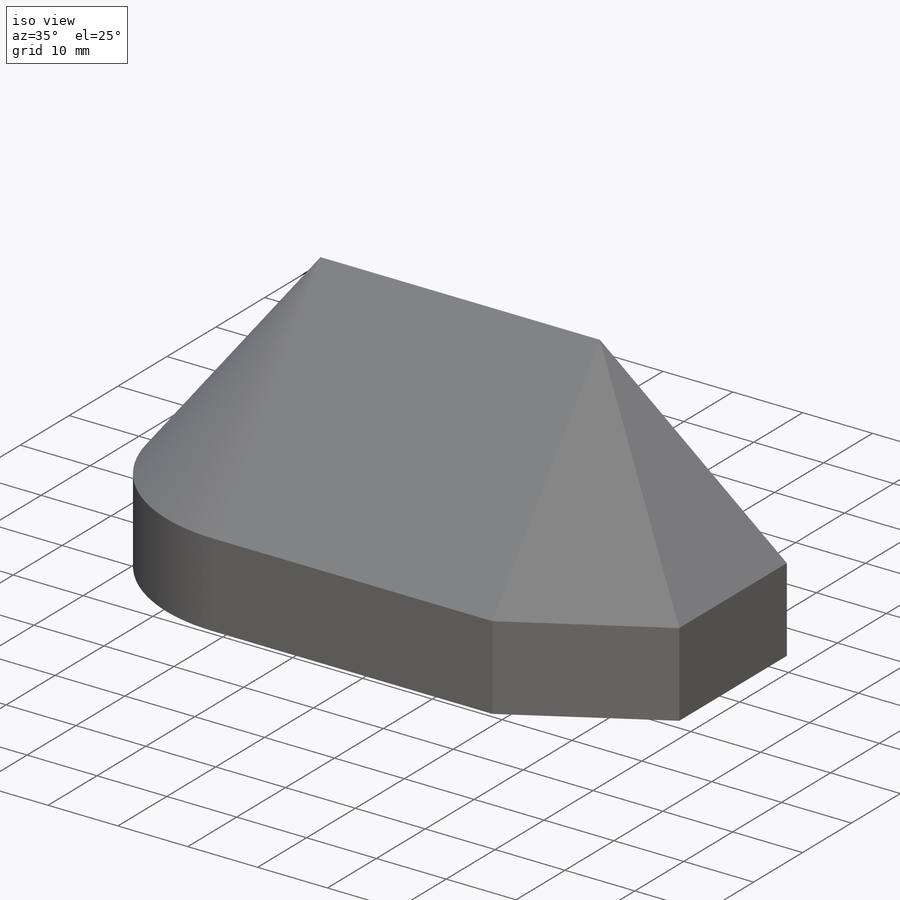
[diagram: iso view]
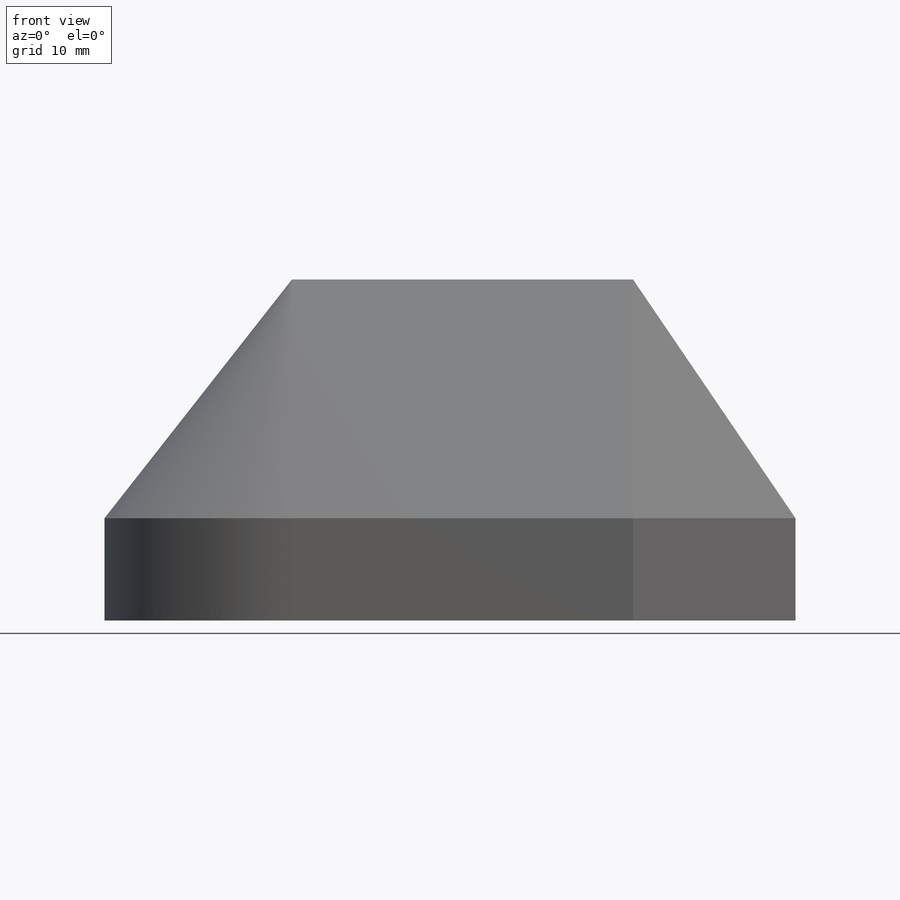
[diagram: front view]
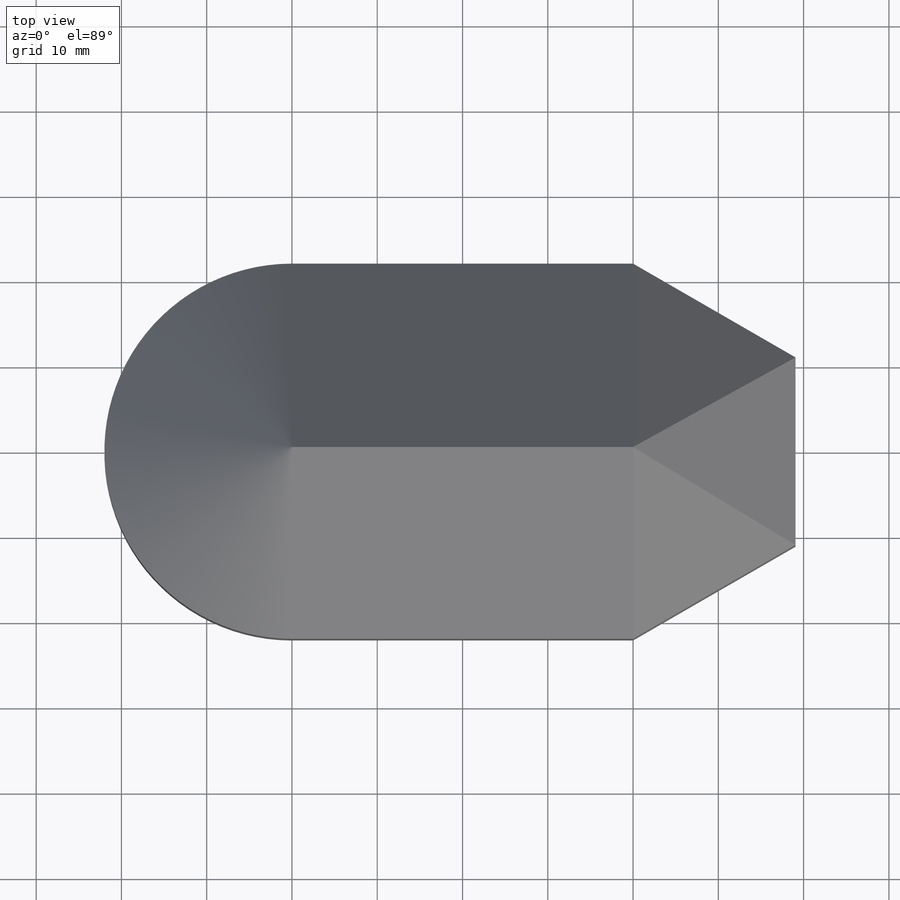
[diagram: top view]
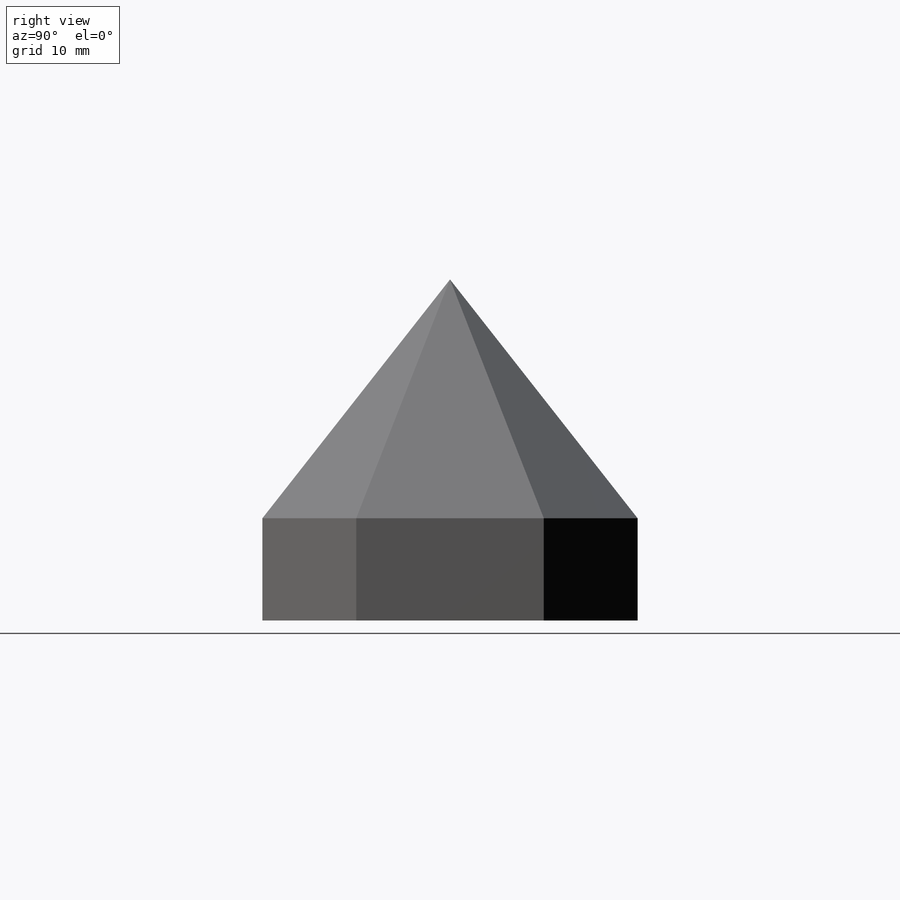
[diagram: right view]
SOLIDWORKS PART (.sldprt)
format: sldprt  version: not decoded by parser v0  size: 307,200 bytes
history: native  units: mm
features: sketch x5, extrude x2, material x1, revolve x1 (+14 scaffold rows collapsed)
feature tree (23):
  scaffold x14  (default folders/planes/origin — collapsed)
  material  "Material <not specified>"
  sketch  "Sketch1"  dims[D1=40.0mm]
  extrude  "Extrude1"  Depth=12mm
  sketch  "Sketch2"  dims[D1=28.0mm]
  extrude  "Extrude2"  Depth=40mm
  sketch  "Sketch3"
  revolve  "Revolve1"  Angle=180deg
  sketch  "Sketch4"
  sketch  "Sketch5"
decode coverage: 5 of 8 modeling features carry decoded parameters
note: suppression state not decoded; provenance and decode notes live in map.json
